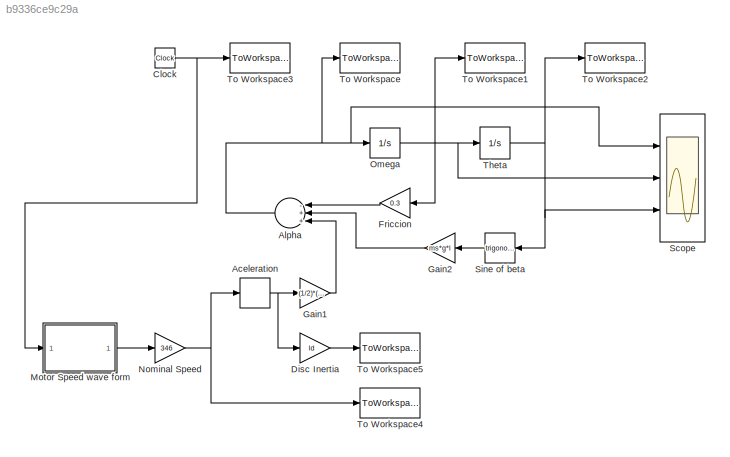
MODEL slx_b9336ce9c29a
KIND model
CONFIG AbsTol = auto
CONFIG FixedStep = auto
CONFIG MaxStep = 0.1
CONFIG MinStep = auto
CONFIG RelTol = 1e-3
CONFIG SampleTimeConstraint = Unconstrained
CONFIG Solver = ode45
CONFIG SolverMode = Auto
CONFIG SolverName = ode45
CONFIG StartTime = 0.0
CONFIG StopTime = 200
BLOCK [Derivative] Aceleration
BLOCK [Sum] Alpha
  InputSameDT = off
  Inputs = -++
  OutDataTypeStr = Inherit: Inherit via internal rule
  Ports = [3, 1]
  SaturateOnIntegerOverflow = off
BLOCK [Clock] Clock
BLOCK [Gain] Disc Inertia
  Gain = Id
  OutDataTypeStr = Inherit: Inherit via internal rule
  ParamDataTypeStr = Inherit: Inherit via internal rule
  SaturateOnIntegerOverflow = off
BLOCK [Gain] Friccion
  Gain = 0.3
  OutDataTypeStr = Inherit: Inherit via internal rule
  ParamDataTypeStr = Inherit: Inherit via internal rule
  SaturateOnIntegerOverflow = off
BLOCK [Gain] Gain1
  Gain = (1/2)*(R^2/l^2)
  OutDataTypeStr = Inherit: Inherit via internal rule
  ParamDataTypeStr = Inherit: Inherit via internal rule
  SaturateOnIntegerOverflow = off
BLOCK [Gain] Gain2
  Gain = ms*g*l
  OutDataTypeStr = Inherit: Inherit via internal rule
  ParamDataTypeStr = Inherit: Inherit via internal rule
  SaturateOnIntegerOverflow = off
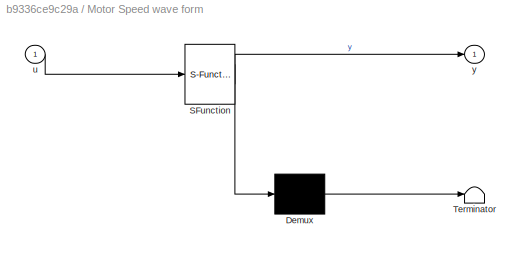
BLOCK [SubSystem] Motor Speed wave form
  ErrorFcn = Stateflow.Translate.translate
  PermitHierarchicalResolution = ExplicitOnly
  Ports = [1, 1]
  RequestExecContextInheritance = off
  SFBlockType = MATLAB Function
  TreatAsAtomicUnit = on
BLOCK [Demux] Motor Speed wave form/ Demux 
  Outputs = 1
  Ports = [1, 1]
BLOCK [S-Function] Motor Speed wave form/ SFunction 
  EnableBusSupport = on
  FunctionName = sf_sfun
  PortCounts = [1 2]
  Ports = [1, 2]
  Tag = Stateflow S-Function model 2
BLOCK [Terminator] Motor Speed wave form/ Terminator 
BLOCK [Inport] Motor Speed wave form/u
  IconDisplay = Port number
BLOCK [Outport] Motor Speed wave form/y
  IconDisplay = Port number
BLOCK [Gain] Nominal Speed
  Gain = 346
  OutDataTypeStr = Inherit: Inherit via internal rule
  ParamDataTypeStr = Inherit: Inherit via internal rule
  SaturateOnIntegerOverflow = off
BLOCK [Integrator] Omega
  Ports = [1, 1]
BLOCK [Scope] Scope
  Floating = off
  LegendLocations = 0.81305     0.91021     0.12482    0.029946\n0.80207     0.54039     0.13656    0.029946\n0.80135     0.25597     0.12482    0.029946
  NumInputPorts = 3
  Ports = [3]
  ShowLegends = on
  TickLabels = on
  YMax = 5~5~5
  YMin = -5~-5~-5
BLOCK [Trigonometry] Sine of beta
  Ports = [1, 1]
BLOCK [Integrator] Theta
  InitialCondition = pi/2
  LimitOutput = on
  LowerSaturationLimit = -pi/2
  Ports = [1, 1]
  UpperSaturationLimit = pi/2
BLOCK [ToWorkspace] To Workspace
  FixptAsFi = on
  MaxDataPoints = inf
  Ports = [1]
  SampleTime = -1
  Save2DSignal = 3-D array (concatenate along third dimension)
  VariableName = Acel
BLOCK [ToWorkspace] To Workspace1
  FixptAsFi = on
  MaxDataPoints = inf
  Ports = [1]
  SampleTime = -1
  Save2DSignal = 3-D array (concatenate along third dimension)
  VariableName = Vel
BLOCK [ToWorkspace] To Workspace2
  FixptAsFi = on
  MaxDataPoints = inf
  Ports = [1]
  SampleTime = -1
  Save2DSignal = 3-D array (concatenate along third dimension)
  VariableName = Pos
BLOCK [ToWorkspace] To Workspace3
  FixptAsFi = on
  MaxDataPoints = inf
  Ports = [1]
  SampleTime = -1
  Save2DSignal = 3-D array (concatenate along third dimension)
  VariableName = t
BLOCK [ToWorkspace] To Workspace4
  FixptAsFi = on
  MaxDataPoints = inf
  Ports = [1]
  SampleTime = -1
  Save2DSignal = 3-D array (concatenate along third dimension)
  VariableName = MSpeed
BLOCK [ToWorkspace] To Workspace5
  FixptAsFi = on
  MaxDataPoints = inf
  Ports = [1]
  SampleTime = -1
  Save2DSignal = 3-D array (concatenate along third dimension)
  VariableName = MTorque
NET Aceleration:1 -> Disc Inertia:1, Gain1:1
NET Alpha:1 -> Omega:1, Scope:1, To Workspace:1
NET Clock:1 -> Motor Speed wave form:1, To Workspace3:1
LINE Disc Inertia:1 -> To Workspace5:1
LINE Friccion:1 -> Alpha:1
LINE Gain1:1 -> Alpha:3
LINE Gain2:1 -> Alpha:2
LINE Motor Speed wave form:1 -> Nominal Speed:1
NET Nominal Speed:1 -> Aceleration:1, To Workspace4:1
NET Omega:1 -> Friccion:1, Scope:2, Theta:1, To Workspace1:1
LINE Sine of beta:1 -> Gain2:1
NET Theta:1 -> Scope:3, Sine of beta:1, To Workspace2:1
note: NET lines group one-source signal fan-out (src -> all destinations, sorted); 1:1 wires keep LINE
CHART Motor Speed wave form states=1 transitions=1
  STATE_LABEL 'eML_blk_kernel()'
  STATE_LABEL 'SCRIPT:\nfunction y = fcn(u)\ny = (1./(1+exp(-u*0.2+5))-(1./(1+exp(-u*3+200))));\n'
